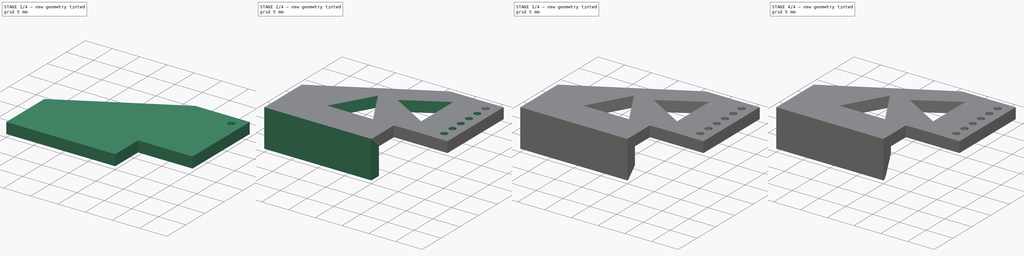
[diagram: build sequence overview — one tinted view per stage of 4, left to right]
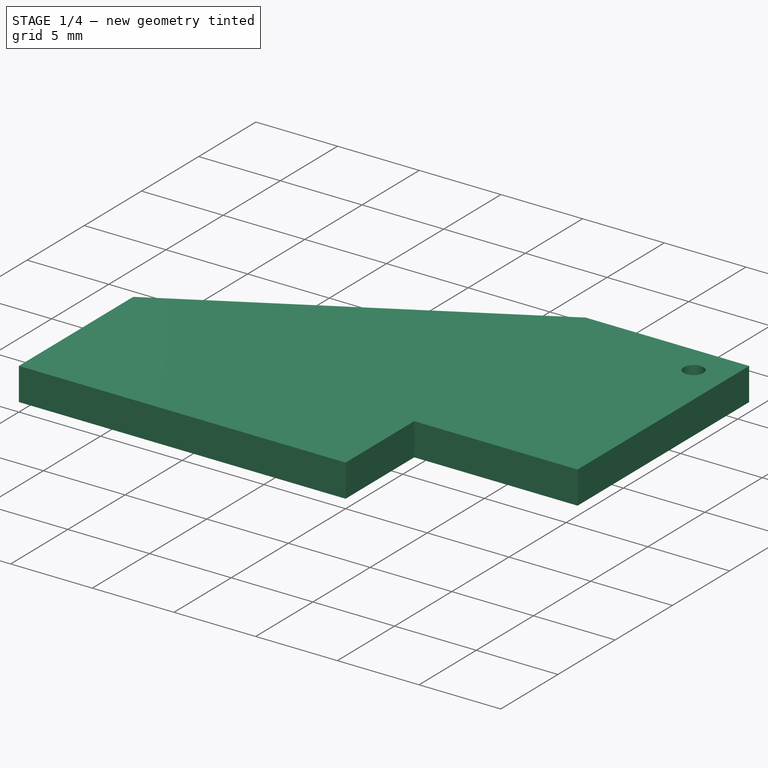
[diagram: stage 1 of 4 — iso view after this stage's code; geometry added in this stage tinted green]
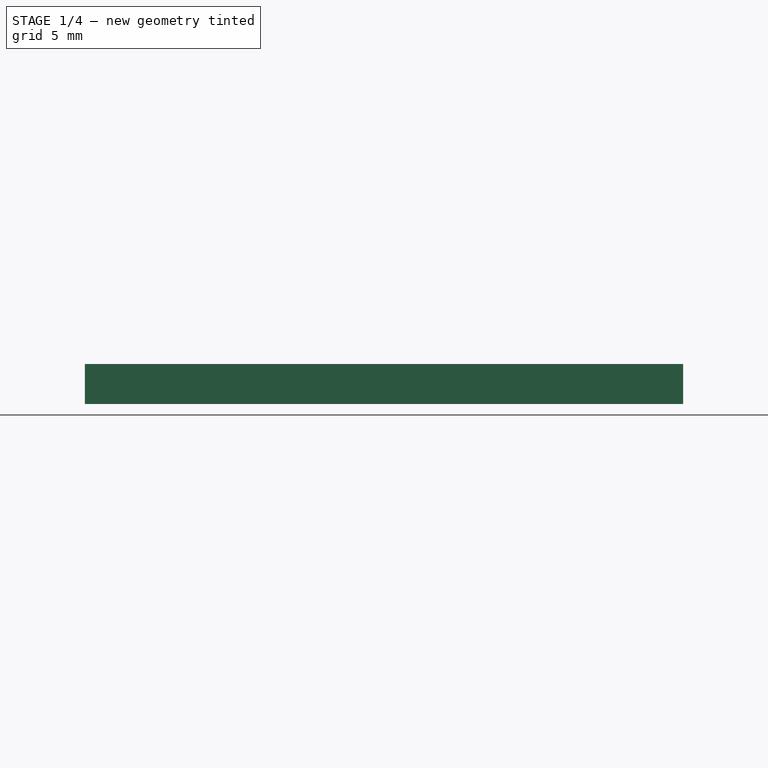
[diagram: stage 1 of 4 — front view after this stage's code; geometry added in this stage tinted green]
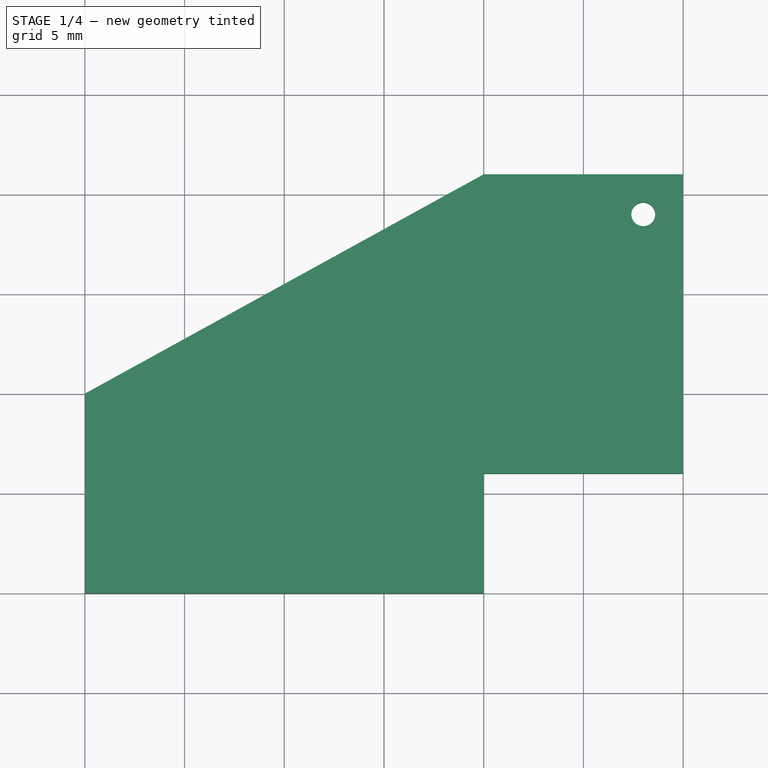
[diagram: stage 1 of 4 — top view after this stage's code; geometry added in this stage tinted green]
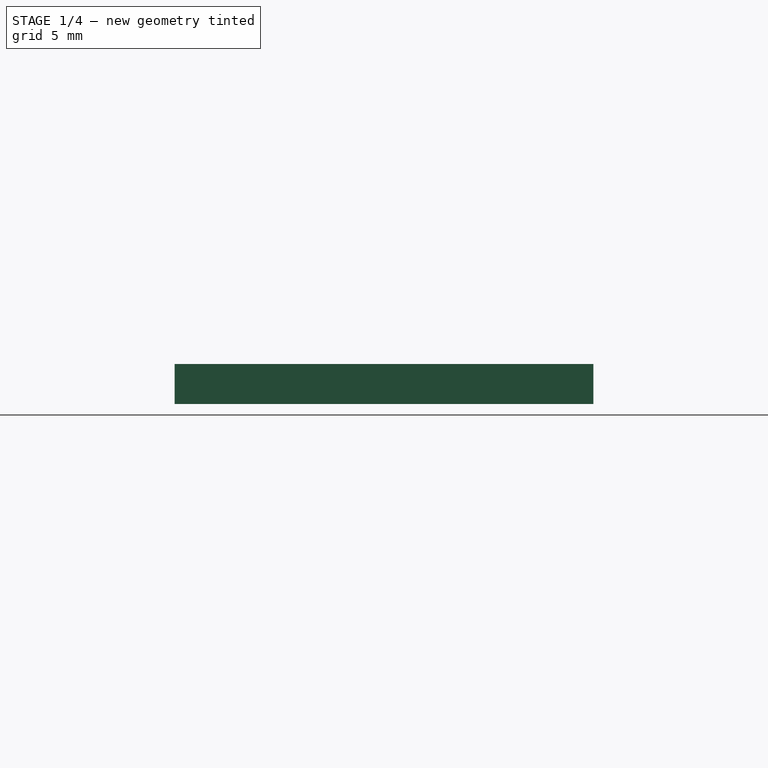
[diagram: stage 1 of 4 — right view after this stage's code; geometry added in this stage tinted green]
FCSTD DOCUMENT  (FreeCAD 0.18.1R)
Label: servohorn_for_balsa
License: All rights reserved
LicenseURL: http://en.wikipedia.org/wiki/All_rights_reserved
objects: Sketcher::SketchObject×5, PartDesign::Chamfer×3, PartDesign::Pad×2, PartDesign::LinearPattern×2, PartDesign::Hole×1, PartDesign::Pocket×1, PartDesign::Revolution×1, PartDesign::Body×1
note: 21 computed .brp shape members not serialized (recipe doc carries the construction recipe); baked Part::Feature solids carry a one-line shape summary decoded from their .brp

FEATURE [Sketcher::SketchObject] Sketch
  MapMode = 5
  Support = -> [XY_Plane]
  sketch-geometry (7):
    g0: LineSegment StartX=0 StartY=0 StartZ=0 EndX=20 EndY=1e-16 EndZ=0
    g1: LineSegment StartX=20 StartY=1e-16 StartZ=0 EndX=20 EndY=6 EndZ=0
    g2: LineSegment StartX=20 StartY=6 StartZ=0 EndX=30 EndY=6 EndZ=0
    g3: LineSegment StartX=30 StartY=6 StartZ=0 EndX=30 EndY=21 EndZ=0
    g4: LineSegment StartX=30 StartY=21 StartZ=0 EndX=20 EndY=21 EndZ=0
    g5: LineSegment StartX=20 StartY=21 StartZ=0 EndX=0 EndY=10 EndZ=0
    g6: LineSegment StartX=0 StartY=10 StartZ=0 EndX=0 EndY=0 EndZ=0
  constraints (19):
    c: Coincident(g-1,g0)
    c: PointOnObject(g0,g-1)
    c: Coincident(g0,g1)
    c: Vertical(g1)
    c: Coincident(g1,g2)
    c: Horizontal(g2)
    c: Coincident(g2,g3)
    c: Vertical(g3)
    c: Coincident(g3,g4)
    c: Horizontal(g4)
    c: Coincident(g4,g5)
    c: Coincident(g5,g6)
    c: Coincident(g6,g0)
    c: Vertical(g6)
    c: DistanceX(g2,g2) = 10
    c: DistanceY(g1,g1) = 6
    c: DistanceX(g0,g0) = 20
    c: DistanceY(g3,g3) = 15
    c: DistanceX(g4,g4) = 10
FEATURE [PartDesign::Pad] Pad
  Length = 2
  Length2 = 100
  Profile = -> Sketch
  Refine = true
  Type = 0
FEATURE [Sketcher::SketchObject] Sketch001
  ExternalGeometry = -> [Pad]
  MapMode = 5
  Placement = pos=(0,0,2) rot=(0,0,1;0rad)
  Support = -> [Pad]
  sketch-geometry (1):
    g0: Circle CenterX=28 CenterY=19 CenterZ=0 NormalX=0 NormalY=0 NormalZ=1 AngleXU=0 Radius=0.7
  constraints (3):
    c: Radius(g0) = 0.7
    c: DistanceY(g0,g-4) = 2
    c: DistanceX(g0,g-4) = 2
FEATURE [PartDesign::Hole] Hole
  BaseFeature = -> Pad
  Depth = 25
  DepthType = 1
  Diameter = 1.2
  DrillPoint = 0
  DrillPointAngle = 118
  HoleCutCountersinkAngle = 90
  HoleCutDepth = 0
  HoleCutDiameter = 1.1
  HoleCutType = 0
  ModelActualThread = false
  Profile = -> Sketch001
  Refine = true
  Tapered = false
  TaperedAngle = 90
  ThreadAngle = 0
  ThreadClass = 9
  ThreadCutOffInner = 0
  ThreadCutOffOuter = 0
  ThreadDirection = 0
  ThreadFit = 0
  ThreadPitch = 0
  ThreadSize = 1
  ThreadType = 2
  Threaded = false
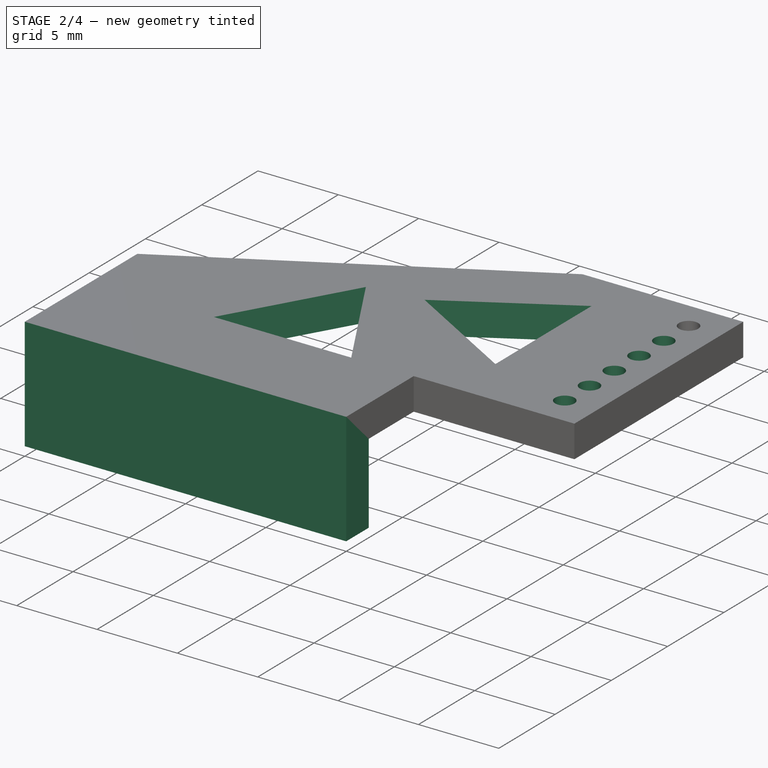
[diagram: stage 2 of 4 — iso view after this stage's code; geometry added in this stage tinted green]
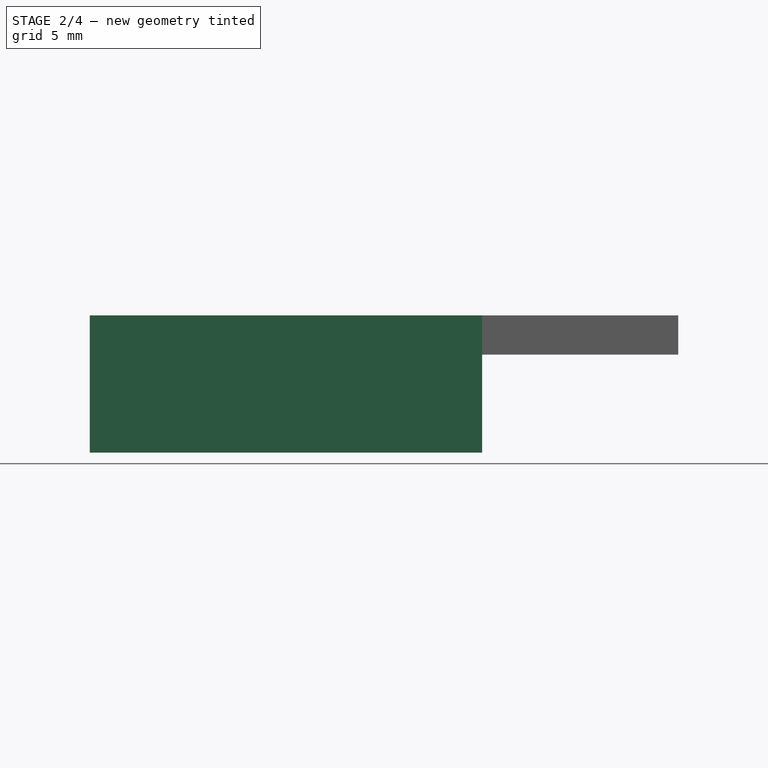
[diagram: stage 2 of 4 — front view after this stage's code; geometry added in this stage tinted green]
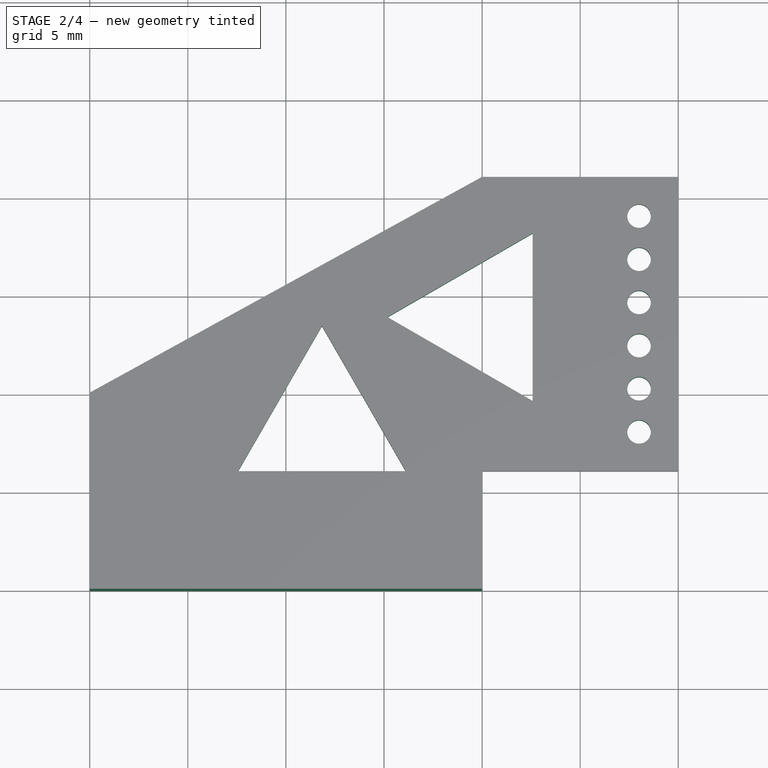
[diagram: stage 2 of 4 — top view after this stage's code; geometry added in this stage tinted green]
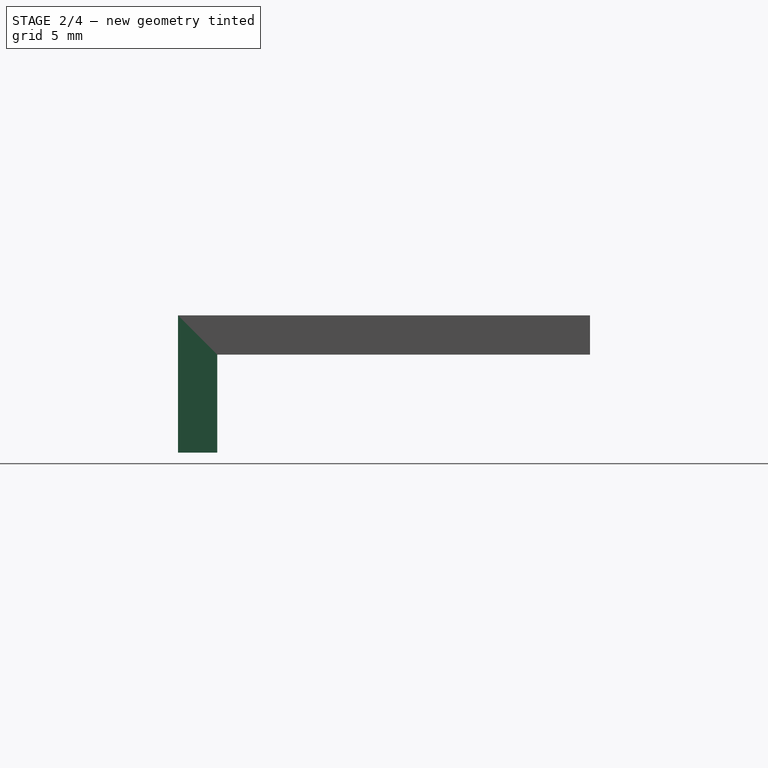
[diagram: stage 2 of 4 — right view after this stage's code; geometry added in this stage tinted green]
FEATURE [PartDesign::LinearPattern] LinearPattern
  BaseFeature = -> Hole
  Direction = -> Hole [Edge19]
  Length = 11
  Occurrences = 6
  Originals = -> [Hole]
  Refine = true
  Reversed = true
FEATURE [Sketcher::SketchObject] Sketch002
  ExternalGeometry = -> [LinearPattern]
  MapMode = 5
  Placement = pos=(0,0,2) rot=(0,0,1;0rad)
  Support = -> [LinearPattern]
  sketch-geometry (9):
    g0: LineSegment StartX=11.8375 StartY=13.403 StartZ=0 EndX=7.56331 EndY=6 EndZ=0
    g1: LineSegment StartX=7.56331 StartY=6 StartZ=0 EndX=16.1116 EndY=6 EndZ=0
    g2: LineSegment StartX=16.1116 StartY=6 StartZ=0 EndX=11.8375 EndY=13.403 EndZ=0
    g3: Circle [constr] CenterX=11.8375 CenterY=8.46768 CenterZ=0 NormalX=0 NormalY=0 NormalZ=1 AngleXU=0 Radius=4.93535
    g4: LineSegment StartX=22.5771 StartY=9.57913 StartZ=0 EndX=22.5771 EndY=18.1274 EndZ=0
    g5: LineSegment StartX=22.5771 StartY=18.1274 StartZ=0 EndX=15.1741 EndY=13.8533 EndZ=0
    g6: LineSegment StartX=15.1741 StartY=13.8533 StartZ=0 EndX=22.5771 EndY=9.57913 EndZ=0
    g7: Circle [constr] CenterX=20.1095 CenterY=13.8533 CenterZ=0 NormalX=0 NormalY=0 NormalZ=1 AngleXU=0 Radius=4.93535
    g8: LineSegment [constr] StartX=7.56331 StartY=6 StartZ=0 EndX=7.56331 EndY=0 EndZ=0
  constraints (24):
    c: Coincident(g0,g1)
    c: Coincident(g1,g2)
    c: Coincident(g2,g0)
    c: Equal(g0,g1)
    c: Equal(g0,g2)
    c: PointOnObject(g0,g3)
    c: PointOnObject(g1,g3)
    c: PointOnObject(g2,g3)
    c: Coincident(g4,g5)
    c: Coincident(g5,g6)
    c: Coincident(g6,g4)
    c: Equal(g4,g5)
    c: Equal(g4,g6)
    c: PointOnObject(g4,g7)
    c: PointOnObject(g5,g7)
    c: PointOnObject(g6,g7)
    c: Horizontal(g1)
    c: Coincident(g8,g0)
    c: PointOnObject(g8,g-1)
    c: Vertical(g8)
    c: Equal(g8,g-3)
    c: Equal(g2,g6)
    c: Tangent(g3,g7)
    c: Vertical(g4)
FEATURE [PartDesign::Pocket] Pocket
  BaseFeature = -> LinearPattern
  Length = 5
  Length2 = 100
  Profile = -> Sketch002
  Refine = true
  Type = 1
FEATURE [Sketcher::SketchObject] Sketch003
  ExternalGeometry = -> [Pocket]
  MapMode = 5
  Placement = pos=(0,0,0) rot=(1,0,0;3.14159rad)
  Support = -> [Pocket]
  sketch-geometry (4):
    g0: LineSegment StartX=0 StartY=0 StartZ=0 EndX=20 EndY=0 EndZ=0
    g1: LineSegment StartX=20 StartY=0 StartZ=0 EndX=20 EndY=-2 EndZ=0
    g2: LineSegment StartX=20 StartY=-2 StartZ=0 EndX=0 EndY=-2 EndZ=0
    g3: LineSegment StartX=0 StartY=-2 StartZ=0 EndX=0 EndY=0 EndZ=0
  constraints (11):
    c: Coincident(g0,g1)
    c: Coincident(g1,g2)
    c: Coincident(g2,g3)
    c: Coincident(g3,g0)
    c: Horizontal(g0)
    c: Horizontal(g2)
    c: Vertical(g1)
    c: Vertical(g3)
    c: Coincident(g0,g-5)
    c: PointOnObject(g2,g-3)
    c: DistanceY(g3,g3) = 2
FEATURE [PartDesign::Pad] Pad001
  BaseFeature = -> Pocket
  Length = 5
  Length2 = 100
  Profile = -> Sketch003
  Refine = true
  Type = 0
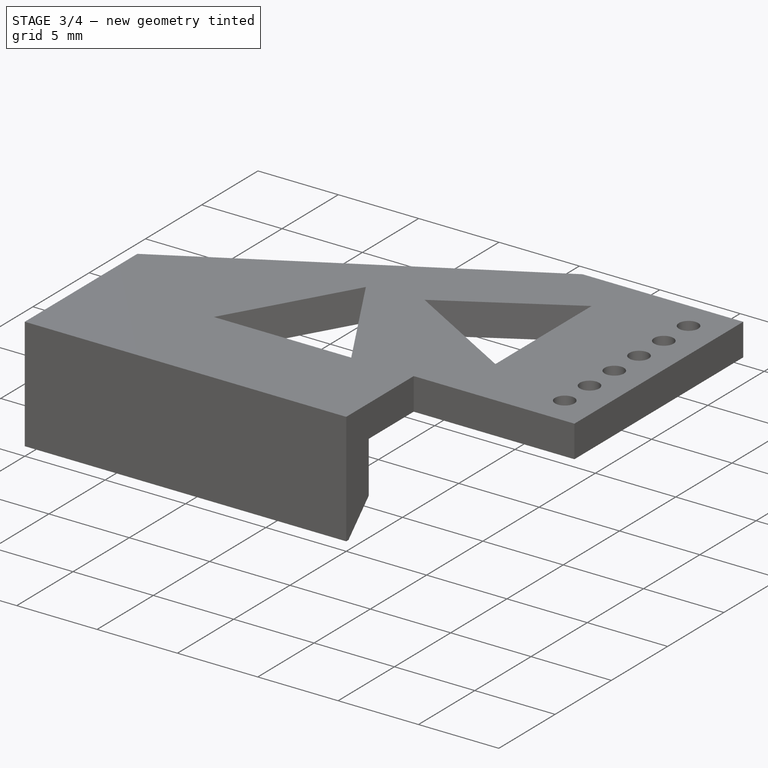
[diagram: stage 3 of 4 — iso view after this stage's code; geometry added in this stage tinted green]
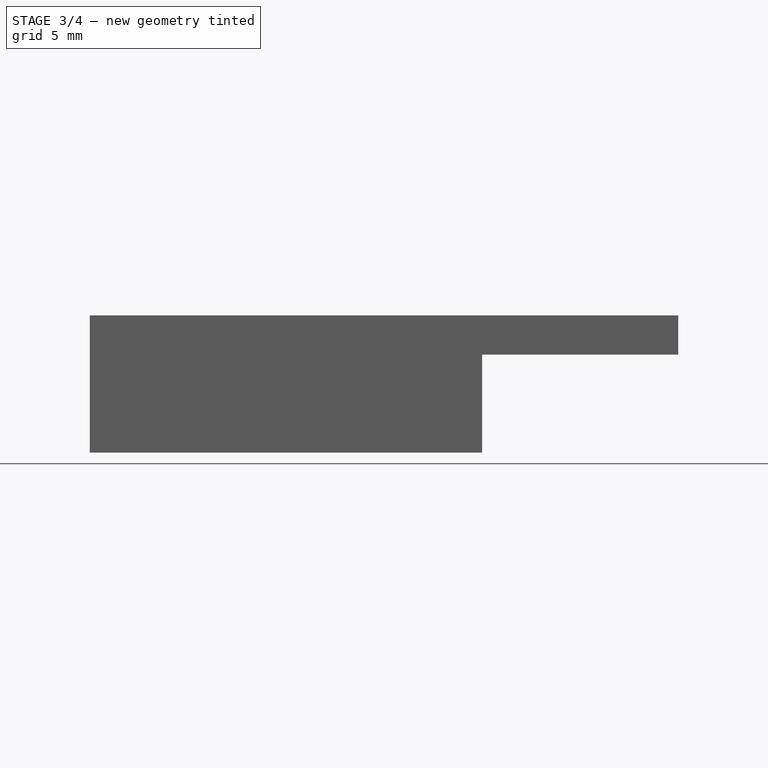
[diagram: stage 3 of 4 — front view after this stage's code; geometry added in this stage tinted green]
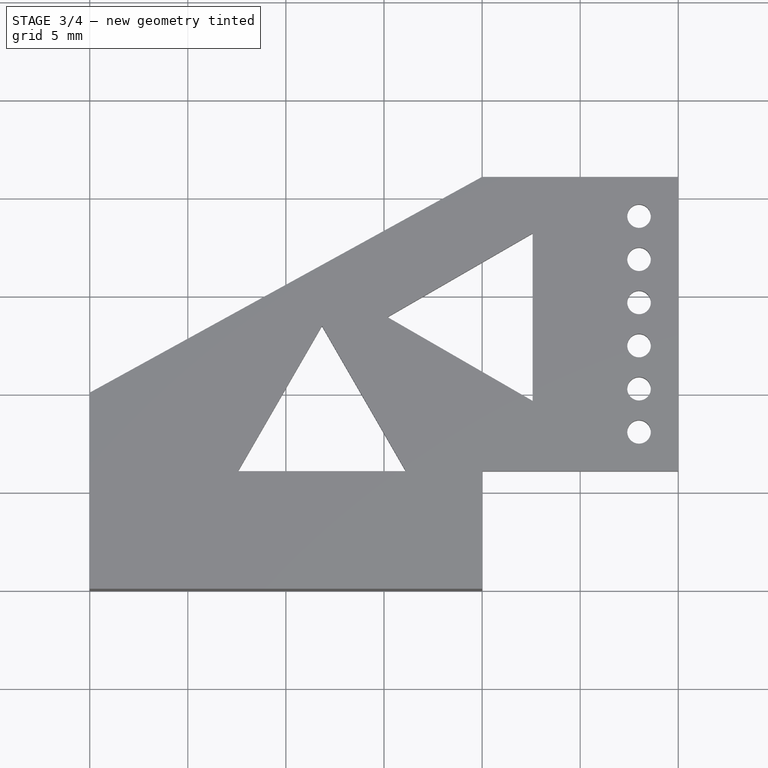
[diagram: stage 3 of 4 — top view after this stage's code; geometry added in this stage tinted green]
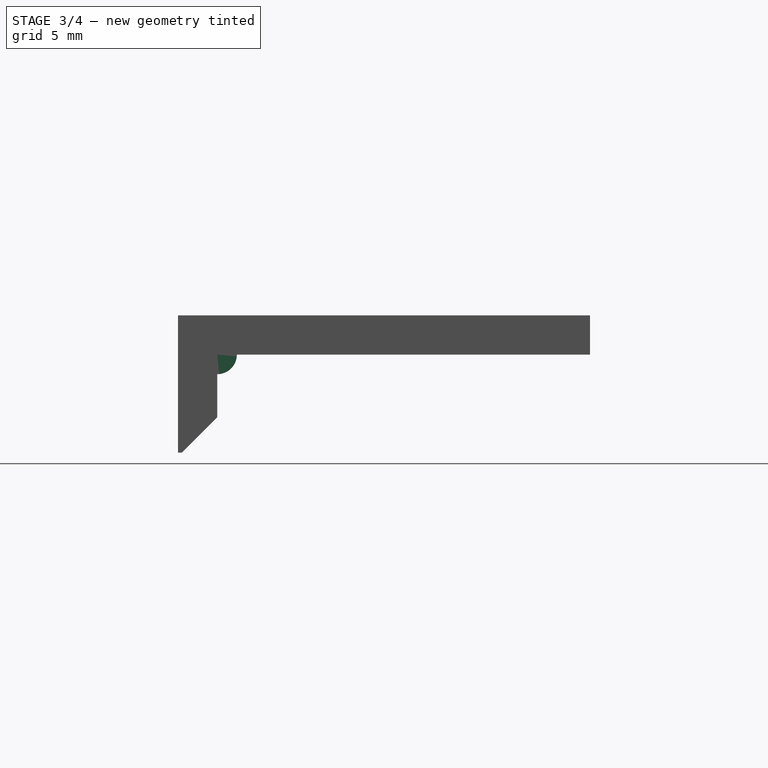
[diagram: stage 3 of 4 — right view after this stage's code; geometry added in this stage tinted green]
FEATURE [Sketcher::SketchObject] Sketch004
  ExternalGeometry = -> [Pad001]
  MapMode = 5
  Placement = pos=(0,2,0) rot=(0,0.707107,0.707107;3.14159rad)
  Support = -> [Pad001]
  sketch-geometry (4):
    g0: LineSegment StartX=-19 StartY=4e-15 StartZ=0 EndX=-18 EndY=4e-15 EndZ=0
    g1: LineSegment StartX=-18 StartY=4e-15 StartZ=0 EndX=-18 EndY=-1 EndZ=0
    g2: LineSegment StartX=-18 StartY=-1 StartZ=0 EndX=-19 EndY=-1 EndZ=0
    g3: LineSegment StartX=-19 StartY=-1 StartZ=0 EndX=-19 EndY=4e-15 EndZ=0
  constraints (12):
    c: Coincident(g0,g1)
    c: Coincident(g1,g2)
    c: Coincident(g2,g3)
    c: Coincident(g3,g0)
    c: Horizontal(g0)
    c: Horizontal(g2)
    c: Vertical(g1)
    c: Vertical(g3)
    c: DistanceX(g2,g2) = 1
    c: DistanceY(g1,g1) = 1
    c: PointOnObject(g0,g-3)
    c: DistanceX(g-3,g2) = 1
FEATURE [PartDesign::Revolution] Revolution
  Angle = 90
  Axis = (-1,0,0)
  Base = (20,2,0)
  BaseFeature = -> Pad001
  Profile = -> Sketch004
  ReferenceAxis = -> Pad001 [Edge28]
  Refine = true
  Reversed = true
FEATURE [PartDesign::LinearPattern] LinearPattern001
  BaseFeature = -> Revolution
  Direction = -> Revolution [Edge67]
  Length = 17
  Occurrences = 10
  Originals = -> [Revolution]
  Refine = true
FEATURE [PartDesign::Chamfer] Chamfer
  Base = -> LinearPattern001 [Edge62]
  BaseFeature = -> LinearPattern001
  Size = 1.8
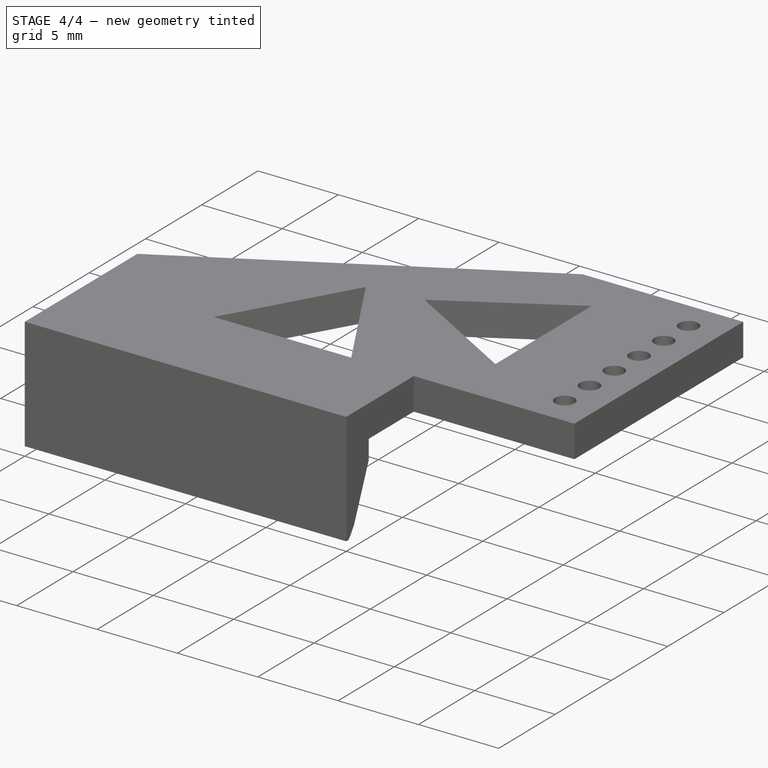
[diagram: stage 4 of 4 — iso view after this stage's code; geometry added in this stage tinted green]
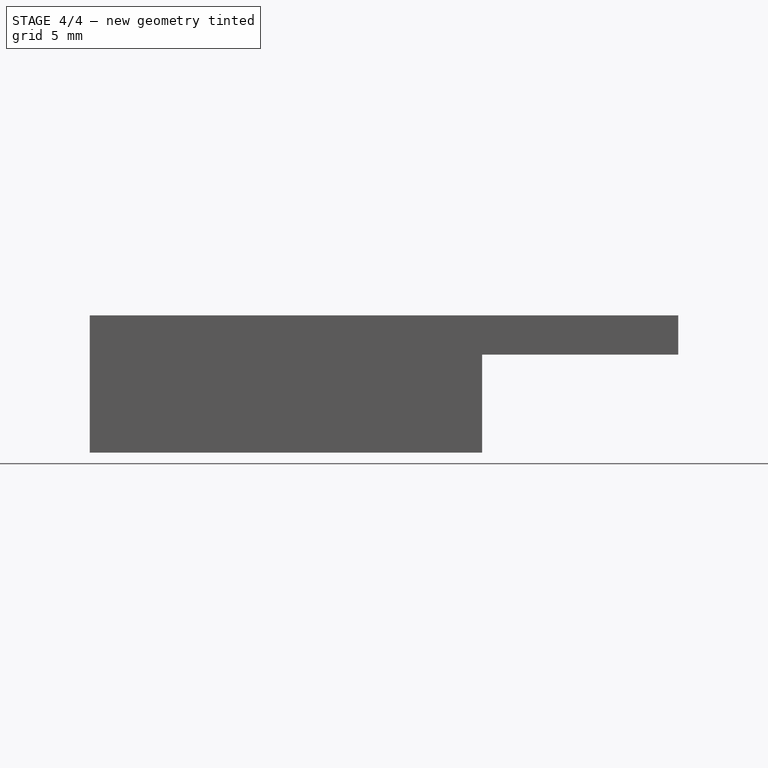
[diagram: stage 4 of 4 — front view after this stage's code; geometry added in this stage tinted green]
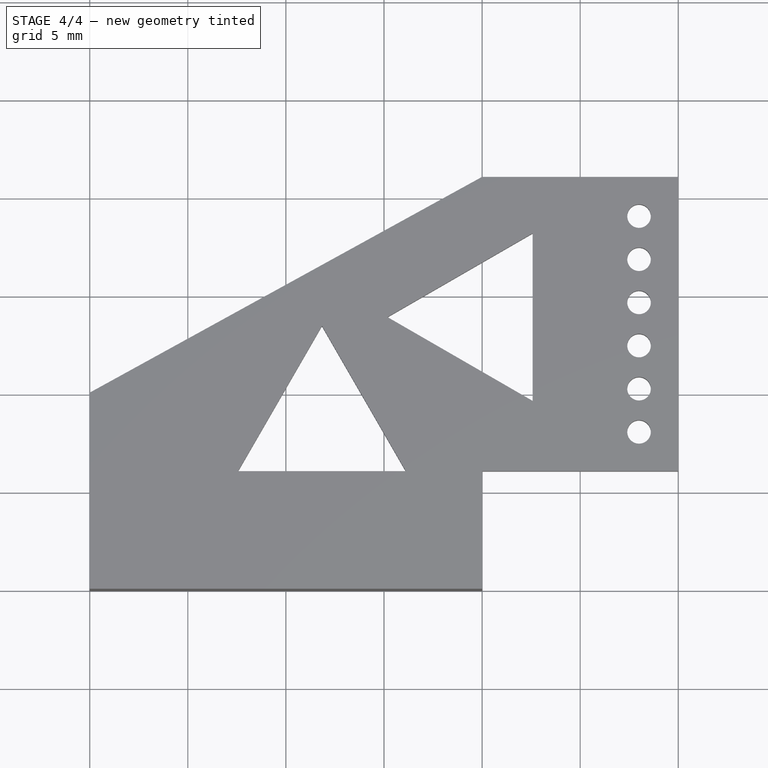
[diagram: stage 4 of 4 — top view after this stage's code; geometry added in this stage tinted green]
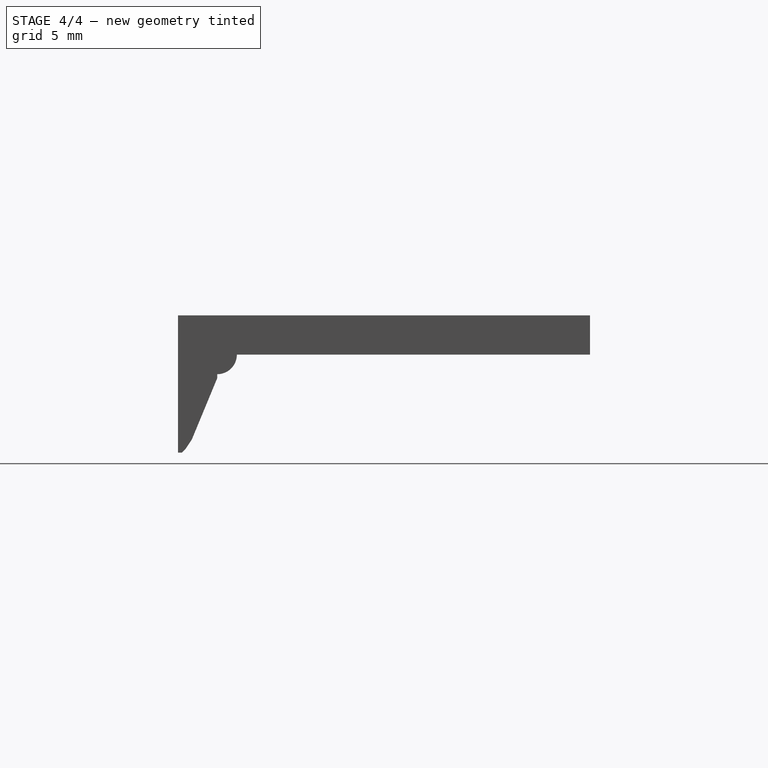
[diagram: stage 4 of 4 — right view after this stage's code; geometry added in this stage tinted green]
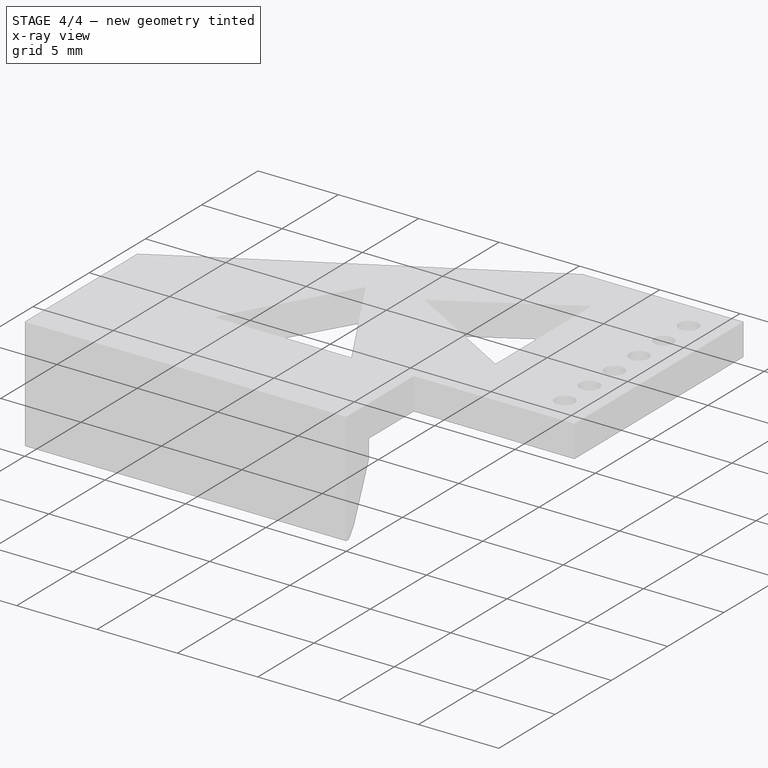
[diagram: stage 4 of 4 — x-ray composite at the iso view; earlier geometry ghosted, this stage's added geometry solid]
FEATURE [PartDesign::Chamfer] Chamfer001
  Base = -> Chamfer [Edge8]
  BaseFeature = -> Chamfer
  Size = 2
FEATURE [PartDesign::Chamfer] Chamfer002
  Base = -> Chamfer001 [Edge53]
  BaseFeature = -> Chamfer001
  Size = 0.3
FEATURE [PartDesign::Body] Body
  Group = -> [Sketch,Pad,Sketch001,Hole,LinearPattern,Sketch002,Pocket,Sketch003,Pad001,Sketch004,Revolution,LinearPattern001,Chamfer,Chamfer001,Chamfer002]
  Origin = -> Origin
  Tip = -> Chamfer002
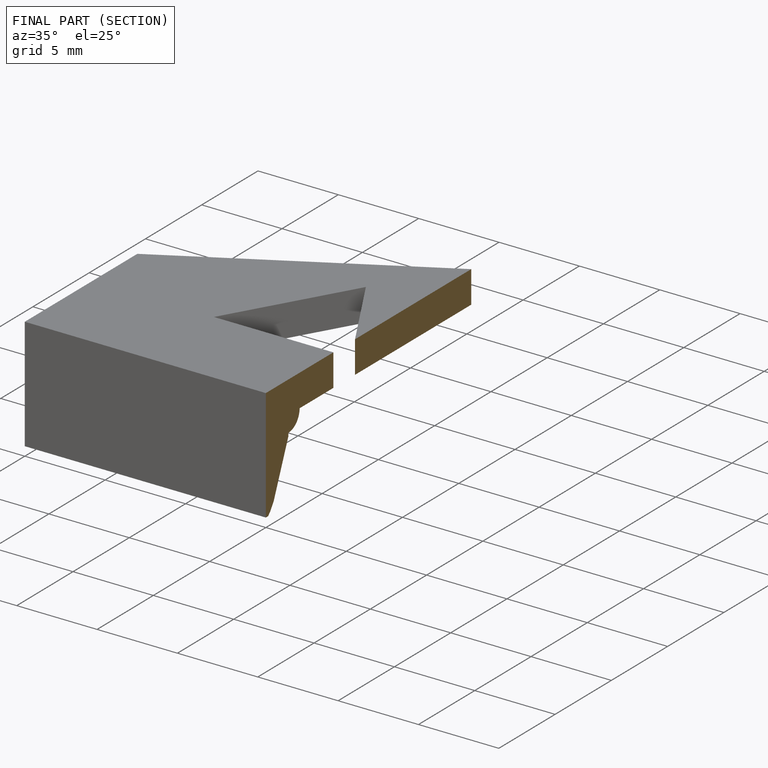
[diagram: finished part — half-section view (interior)]
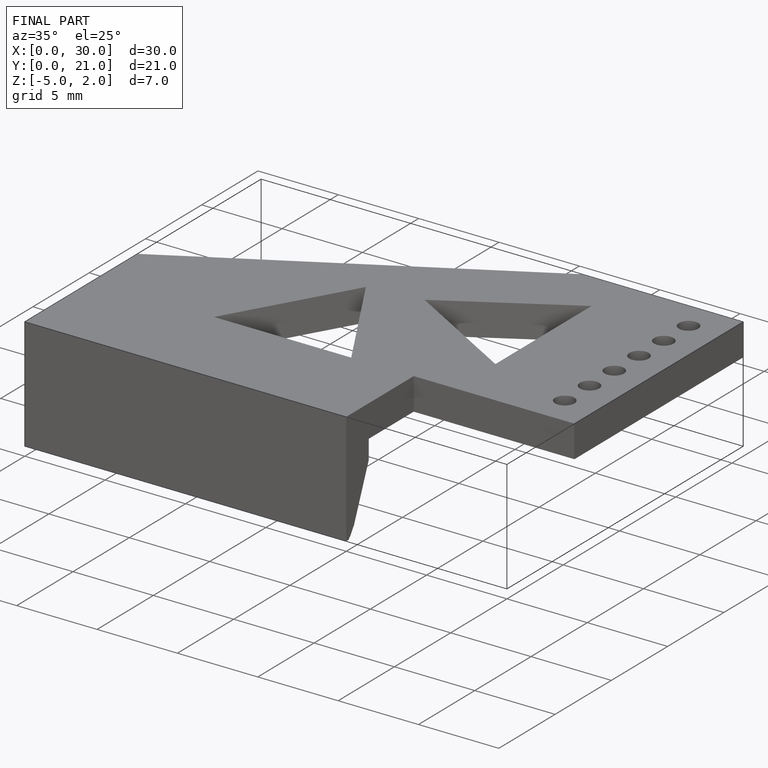
[diagram: finished part — iso view with bounding-box wireframe]
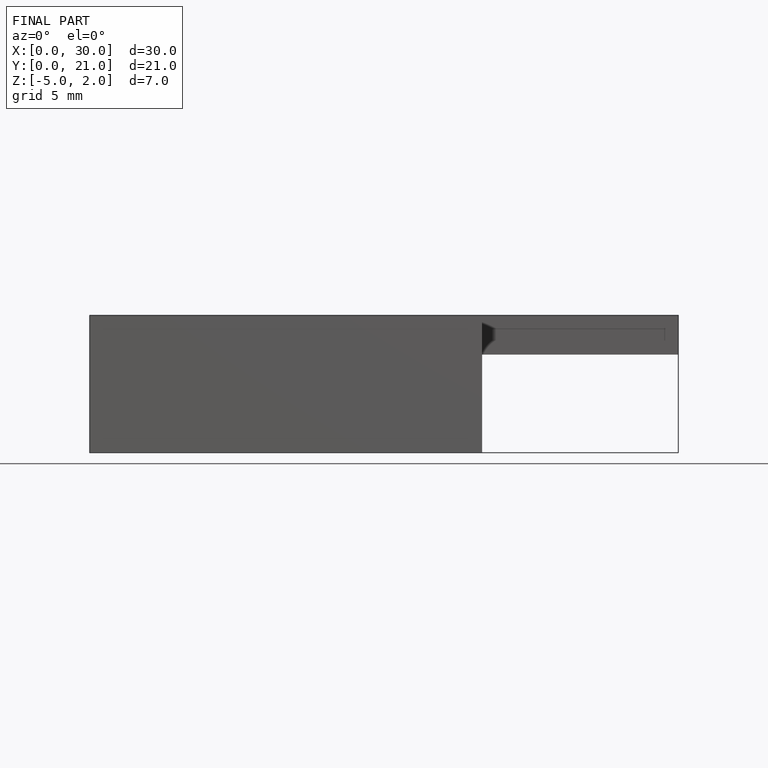
[diagram: finished part — front view with bounding-box wireframe]
